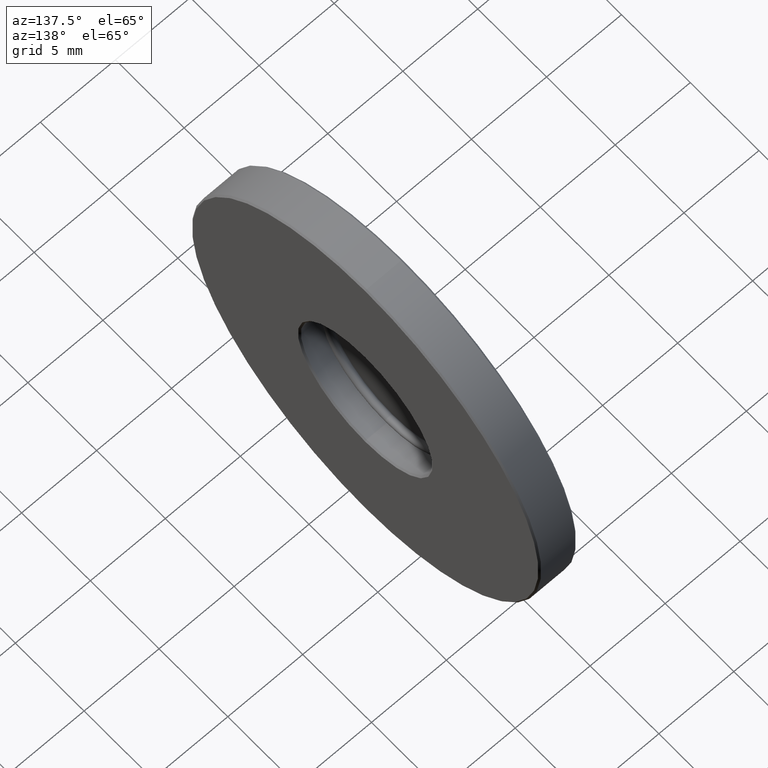
[diagram: clean part render]
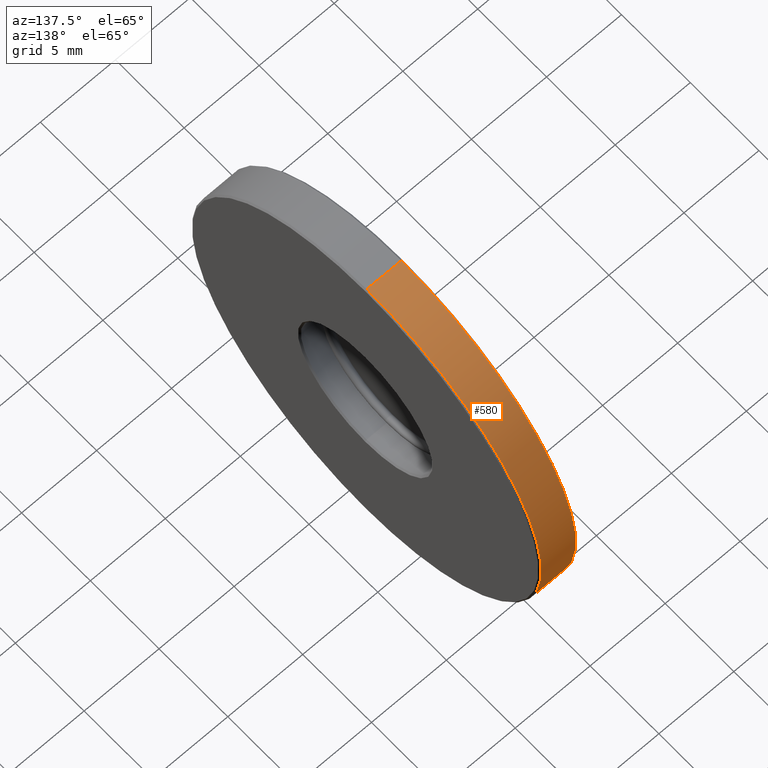
[diagram: same view with one face highlighted and labeled with its STEP entity id]
A machine part, auxiliary view. The second image highlights one B-rep face of the part: STEP entity #580.
In plain terms, the highlighted cylindrical surface (partial cylindrical patch) has radius 12.7 mm, axis along (-1, -0, -0).
Its self-contained STEP definition (entity closure, byte-faithful):
#29 = AXIS2_PLACEMENT_3D ( 'NONE', #835, #515, #504 ) ;
#57 = DIRECTION ( 'NONE',  ( 0.0000000000000000000, 0.0000000000000000000, -1.000000000000000000 ) ) ;
#86 = DIRECTION ( 'NONE',  ( -1.000000000000000000, -0.0000000000000000000, -0.0000000000000000000 ) ) ;
#97 = VERTEX_POINT ( 'NONE', #195 ) ;
#131 = CIRCLE ( 'NONE', #29, 12.69999999999999929 ) ;
#163 = CARTESIAN_POINT ( 'NONE',  ( -2.534863851253199574, 1.436758841085141070, 38.09999999999999432 ) ) ;
#189 = CARTESIAN_POINT ( 'NONE',  ( -2.434863851253203482, 1.436758841085141070, 25.39999999999999858 ) ) ;
#195 = CARTESIAN_POINT ( 'NONE',  ( -4.834863851253204281, 1.436758841085141070, 12.69999999999999929 ) ) ;
#236 = DIRECTION ( 'NONE',  ( 1.000000000000000000, -0.0000000000000000000, -0.0000000000000000000 ) ) ;
#240 = CARTESIAN_POINT ( 'NONE',  ( -4.834863851253204281, 1.436758841085141070, 25.39999999999999858 ) ) ;
#246 = DIRECTION ( 'NONE',  ( -1.000000000000000000, -0.0000000000000000000, -0.0000000000000000000 ) ) ;
#252 = CYLINDRICAL_SURFACE ( 'NONE', #348, 12.69999999999999574 ) ;
#340 = ORIENTED_EDGE ( 'NONE', *, *, #677, .F. ) ;
#348 = AXIS2_PLACEMENT_3D ( 'NONE', #189, #246, #567 ) ;
#350 = VERTEX_POINT ( 'NONE', #163 ) ;
#367 = CARTESIAN_POINT ( 'NONE',  ( -2.434863851253203482, 1.436758841085141070, 38.09999999999999432 ) ) ;
#417 = ORIENTED_EDGE ( 'NONE', *, *, #555, .T. ) ;
#433 = VECTOR ( 'NONE', #86, 1000.000000000000000 ) ;
#443 = CARTESIAN_POINT ( 'NONE',  ( -2.434863851253203482, 1.436758841085142402, 12.69999999999999929 ) ) ;
#457 = EDGE_CURVE ( 'NONE', #97, #469, #517, .T. ) ;
#469 = VERTEX_POINT ( 'NONE', #626 ) ;
#481 = LINE ( 'NONE', #367, #433 ) ;
#485 = ORIENTED_EDGE ( 'NONE', *, *, #591, .T. ) ;
#504 = DIRECTION ( 'NONE',  ( 0.0000000000000000000, 0.0000000000000000000, -1.000000000000000000 ) ) ;
#507 = DIRECTION ( 'NONE',  ( -1.000000000000000000, -0.0000000000000000000, -0.0000000000000000000 ) ) ;
#515 = DIRECTION ( 'NONE',  ( -1.000000000000000000, 0.0000000000000000000, 0.0000000000000000000 ) ) ;
#517 = CIRCLE ( 'NONE', #784, 12.69999999999999929 ) ;
#531 = EDGE_LOOP ( 'NONE', ( #417, #485, #822, #340 ) ) ;
#555 = EDGE_CURVE ( 'NONE', #350, #814, #131, .T. ) ;
#567 = DIRECTION ( 'NONE',  ( 0.0000000000000000000, 0.0000000000000000000, 1.000000000000000000 ) ) ;
#580 = ADVANCED_FACE ( 'NONE', ( #812 ), #252, .T. ) ;
#591 = EDGE_CURVE ( 'NONE', #814, #97, #608, .T. ) ;
#608 = LINE ( 'NONE', #443, #759 ) ;
#626 = CARTESIAN_POINT ( 'NONE',  ( -4.834863851253204281, 1.436758841085142402, 38.09999999999999432 ) ) ;
#677 = EDGE_CURVE ( 'NONE', #350, #469, #481, .T. ) ;
#731 = CARTESIAN_POINT ( 'NONE',  ( -2.534863851253199574, 1.436758841085142402, 12.69999999999999929 ) ) ;
#759 = VECTOR ( 'NONE', #507, 1000.000000000000000 ) ;
#784 = AXIS2_PLACEMENT_3D ( 'NONE', #240, #236, #57 ) ;
#812 = FACE_OUTER_BOUND ( 'NONE', #531, .T. ) ;
#814 = VERTEX_POINT ( 'NONE', #731 ) ;
#822 = ORIENTED_EDGE ( 'NONE', *, *, #457, .T. ) ;
#835 = CARTESIAN_POINT ( 'NONE',  ( -2.534863851253199574, 1.436758841085141070, 25.39999999999999858 ) ) ;